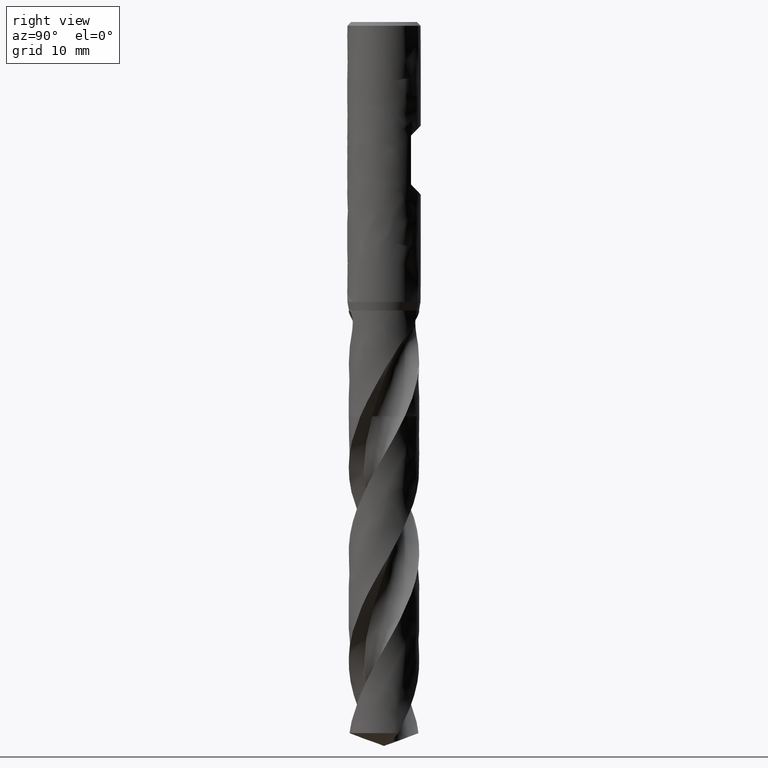
[diagram: clean part render]
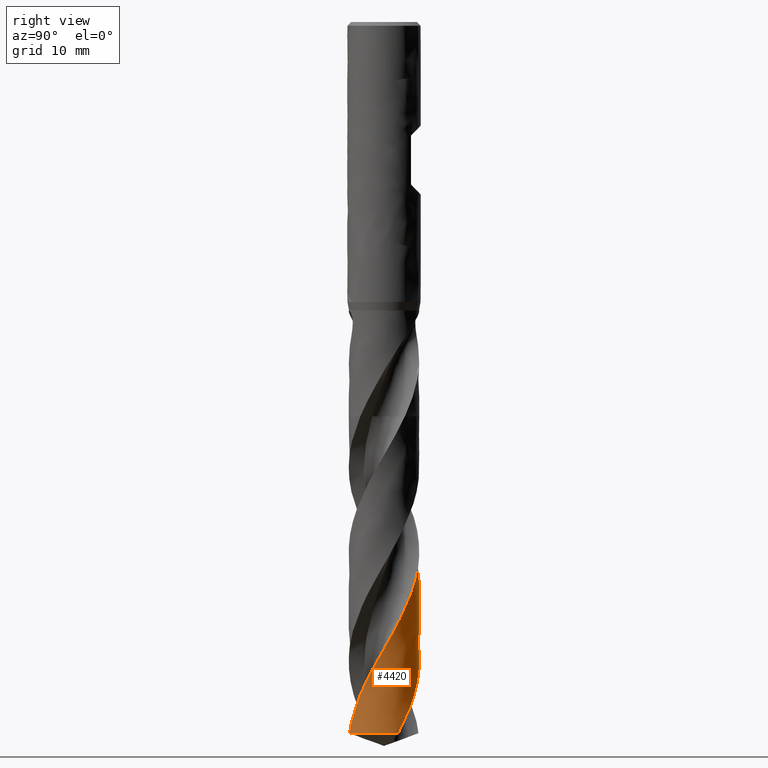
[diagram: same view with one face highlighted and labeled with its STEP entity id]
A machine part, right view. The second image highlights one B-rep face of the part: STEP entity #4420.
In plain terms, the highlighted face is a freeform B-spline surface patch.
Its self-contained STEP definition (entity closure, byte-faithful):
#3330 = VERTEX_POINT('', #3331);
#3331 = CARTESIAN_POINT('', (-5.75, 5.76572558493233E-15, -88.4114445723723));
#3428 = EDGE_CURVE('', #3429, #3330, #3431, .T.);
#3429 = VERTEX_POINT('', #3430);
#3430 = CARTESIAN_POINT('', (5.26135635836145, 2.31961834583397, -115.907171152969));
#3431 = B_SPLINE_CURVE_WITH_KNOTS('', 3, (#3432, #3433, #3434, #3435, #3436, #3437, #3438, #3439, #3440, #3441, #3442, #3443, #3444, #3445, #3446, #3447, #3448, #3449, #3450, #3451, #3452, #3453, #3454, #3455, #3456, #3457, #3458, #3459, #3460, #3461, #3462, #3463, #3464, #3465, #3466, #3467, #3468, #3469, #3470, #3471, #3472, #3473, #3474, #3475, #3476, #3477, #3478, #3479, #3480, #3481, #3482, #3483, #3484, #3485, #3486, #3487, #3488, #3489, #3490, #3491, #3492, #3493, #3494, #3495, #3496, #3497, #3498, #3499, #3500, #3501, #3502, #3503, #3504, #3505, #3506, #3507, #3508, #3509, #3510, #3511, #3512, #3513, #3514, #3515, #3516, #3517, #3518, #3519, #3520, #3521, #3522, #3523, #3524, #3525, #3526, #3527, #3528, #3529, #3530, #3531, #3532, #3533, #3534), .UNSPECIFIED., .F., .U., (4, 3, 3, 3, 3, 3, 3, 3, 3, 3, 3, 3, 3, 3, 3, 3, 3, 3, 3, 3, 3, 3, 3, 3, 3, 3, 3, 3, 3, 3, 3, 3, 3, 3, 4), (0., 0.998414479724208, 1.99659645598563, 2.99454959505257, 3.99227675722206, 4.98977972626538, 5.9870592508588, 6.9841150838855, 7.98094666830408, 8.97755268947953, 9.97393085938466, 10.9700778139642, 11.9659890210908, 12.9616591386548, 13.4046119723773, 13.4629950916535, 14.4626220986254, 15.461981860563, 16.4610837318212, 17.4599356633323, 18.4585442600419, 19.456914833375, 20.455051485205, 21.4529576306736, 22.4506359286901, 23.4480881072606, 24.4453149261283, 25.4423161335358, 26.4390906393306, 27.4356368221289, 28.4319521918892, 29.4280332727841, 30.4238754839511, 31.4194730651082, 31.6483867754396), .UNSPECIFIED.);
#3432 = CARTESIAN_POINT('', (5.26135635836145, 2.31961834583398, -115.907171152969));
#3433 = CARTESIAN_POINT('', (5.19499713504465, 2.47013427969905, -115.61786083562));
#3434 = CARTESIAN_POINT('', (5.12215416717778, 2.61784308502145, -115.328491218301));
#3435 = CARTESIAN_POINT('', (5.04312508867053, 2.76213492429712, -115.039193236178));
#3436 = CARTESIAN_POINT('', (4.96411441387716, 2.90639316194445, -114.749962623654));
#3437 = CARTESIAN_POINT('', (4.87888593919968, 3.04729917764488, -114.4606725505));
#3438 = CARTESIAN_POINT('', (4.78778802076556, 3.18427163857197, -114.171454315795));
#3439 = CARTESIAN_POINT('', (4.69671098689215, 3.32121269801674, -113.882302385522));
#3440 = CARTESIAN_POINT('', (4.59972739226941, 3.45428181068091, -113.593091139229));
#3441 = CARTESIAN_POINT('', (4.4972345760009, 3.58292913248673, -113.303951367065));
#3442 = CARTESIAN_POINT('', (4.39476496824561, 3.7115473233429, -113.014877067824));
#3443 = CARTESIAN_POINT('', (4.28674278734926, 3.83580316939085, -112.725744056488));
#3444 = CARTESIAN_POINT('', (4.17361230808772, 3.95518144991842, -112.436681899132));
#3445 = CARTESIAN_POINT('', (4.06050724967948, 4.07453290568775, -112.147684695154));
#3446 = CARTESIAN_POINT('', (3.94224437339597, 4.18906360886399, -111.858629205161));
#3447 = CARTESIAN_POINT('', (3.81931120822852, 4.29829755771981, -111.569644275695));
#3448 = CARTESIAN_POINT('', (3.69640558055651, 4.40750703775661, -111.28072407995));
#3449 = CARTESIAN_POINT('', (3.56877550656161, 4.51147216914094, -110.991745326284));
#3450 = CARTESIAN_POINT('', (3.43694620910573, 4.60976146407966, -110.702837669436));
#3451 = CARTESIAN_POINT('', (3.30514648119516, 4.70802871255513, -110.413994815088));
#3452 = CARTESIAN_POINT('', (3.16909092017597, 4.80066636154309, -110.125092670704));
#3453 = CARTESIAN_POINT('', (3.02933772961247, 4.887290959207, -109.83626220189));
#3454 = CARTESIAN_POINT('', (2.88961597104849, 4.97389607406481, -109.547496694164));
#3455 = CARTESIAN_POINT('', (2.74613725925014, 5.05452864349765, -109.258671784043));
#3456 = CARTESIAN_POINT('', (2.59949039122713, 5.12885461930029, -108.969918464394));
#3457 = CARTESIAN_POINT('', (2.45287670648569, 5.20316377660679, -108.681230483901));
#3458 = CARTESIAN_POINT('', (2.30303149537126, 5.27120198256391, -108.39248354019));
#3459 = CARTESIAN_POINT('', (2.15057136138357, 5.33268626675121, -108.103807659944));
#3460 = CARTESIAN_POINT('', (1.99814608393344, 5.39415649395715, -107.815197778863));
#3461 = CARTESIAN_POINT('', (1.84303800233285, 5.44910359513386, -107.526529480144));
#3462 = CARTESIAN_POINT('', (1.68588719547835, 5.49729791480527, -107.237931751545));
#3463 = CARTESIAN_POINT('', (1.52877285637883, 5.54548105070565, -106.949400993721));
#3464 = CARTESIAN_POINT('', (1.36954460205389, 5.58693666092134, -106.660811919677));
#3465 = CARTESIAN_POINT('', (1.20885955871399, 5.62149077801488, -106.372293535193));
#3466 = CARTESIAN_POINT('', (1.04821254298593, 5.65603671755484, -106.083843431271));
#3467 = CARTESIAN_POINT('', (0.886036929015118, 5.68370008238491, -105.795334429359));
#3468 = CARTESIAN_POINT('', (0.722999940138129, 5.70436421405238, -105.506896772363));
#3469 = CARTESIAN_POINT('', (0.560002419153486, 5.72502334335977, -105.218528940174));
#3470 = CARTESIAN_POINT('', (0.396072340438998, 5.73869573536417, -104.930101763175));
#3471 = CARTESIAN_POINT('', (0.231883033956588, 5.74532246776153, -104.641746156039));
#3472 = CARTESIAN_POINT('', (0.158838641752425, 5.74827056255915, -104.513462770761));
#3473 = CARTESIAN_POINT('', (0.0857325556488876, 5.74982562374548, -104.385174925186));
#3474 = CARTESIAN_POINT('', (0.0126247666489301, 5.74998614044131, -104.256893878824));
#3475 = CARTESIAN_POINT('', (0.00298884056323384, 5.75000729724331, -104.2399858763));
#3476 = CARTESIAN_POINT('', (-0.00664717903760635, 5.75000423198311, -104.223077879412));
#3477 = CARTESIAN_POINT('', (-0.0162831568372675, 5.74997694419756, -104.206169915143));
#3478 = CARTESIAN_POINT('', (-0.181268922698167, 5.74950972682825, -103.916674288231));
#3479 = CARTESIAN_POINT('', (-0.346282890648146, 5.74193486125477, -103.627119179157));
#3480 = CARTESIAN_POINT('', (-0.510639378247272, 5.72728098013219, -103.337636108872));
#3481 = CARTESIAN_POINT('', (-0.674951926001992, 5.71263101664781, -103.048230430366));
#3482 = CARTESIAN_POINT('', (-0.838680559321904, 5.69089934080742, -102.758764706231));
#3483 = CARTESIAN_POINT('', (-1.00114654911799, 5.66217322122782, -102.469371386085));
#3484 = CARTESIAN_POINT('', (-1.16357061360738, 5.63345451459277, -102.180052745593));
#3485 = CARTESIAN_POINT('', (-1.32480448501069, 5.59773226237387, -101.890674135865));
#3486 = CARTESIAN_POINT('', (-1.48417923990296, 5.55515184165484, -101.601367703433));
#3487 = CARTESIAN_POINT('', (-1.64351412490101, 5.51258207304237, -101.312133645178));
#3488 = CARTESIAN_POINT('', (-1.80106235182897, 5.46313840473687, -101.022840079911));
#3489 = CARTESIAN_POINT('', (-1.95616861996197, 5.40702361103372, -100.733618181112));
#3490 = CARTESIAN_POINT('', (-2.11123710196095, 5.35092248770729, -100.444466740957));
#3491 = CARTESIAN_POINT('', (-2.2639359375323, 5.28812771399918, -100.155256232916));
#3492 = CARTESIAN_POINT('', (-2.41362862999284, 5.21889804810163, -99.8661170334374));
#3493 = CARTESIAN_POINT('', (-2.56328564244801, 5.14968488344278, -99.5770467517399));
#3494 = CARTESIAN_POINT('', (-2.71000700173063, 5.07400797599326, -99.2879173226474));
#3495 = CARTESIAN_POINT('', (-2.85318160475265, 4.99217935678408, -98.9988595058917));
#3496 = CARTESIAN_POINT('', (-2.99632266149513, 4.91036991028904, -98.7098694163316));
#3497 = CARTESIAN_POINT('', (-3.13598329285225, 4.82237473755615, -98.4208195896925));
#3498 = CARTESIAN_POINT('', (-3.27158335534778, 4.72855605328005, -98.1318419139855));
#3499 = CARTESIAN_POINT('', (-3.40715210281549, 4.63475903517913, -97.8429309738225));
#3500 = CARTESIAN_POINT('', (-3.53872224006055, 4.535099640031, -97.553960065485));
#3501 = CARTESIAN_POINT('', (-3.66574750329327, 4.42998817629339, -97.2650613636326));
#3502 = CARTESIAN_POINT('', (-3.79274376341512, 4.32490071218671, -96.9762286247301));
#3503 = CARTESIAN_POINT('', (-3.91525375434381, 4.21431684596794, -96.6873362013118));
#3504 = CARTESIAN_POINT('', (-4.03276780454584, 4.09869294222177, -96.3985156044929));
#3505 = CARTESIAN_POINT('', (-4.15025522069963, 3.98309524413038, -96.1097604676058));
#3506 = CARTESIAN_POINT('', (-4.26280227363191, 3.86240726952519, -95.8209461149368));
#3507 = CARTESIAN_POINT('', (-4.36993942567416, 3.73712849871911, -95.5322031322086));
#3508 = CARTESIAN_POINT('', (-4.47705237164693, 3.61187803281544, -95.2435253867259));
#3509 = CARTESIAN_POINT('', (-4.57880722676728, 3.48198109500139, -94.9547886440624));
#3510 = CARTESIAN_POINT('', (-4.67477889266683, 3.34797585186584, -94.6661232022485));
#3511 = CARTESIAN_POINT('', (-4.77072884604593, 3.21400092592393, -94.3775230677755));
#3512 = CARTESIAN_POINT('', (-4.86094216386707, 3.07585827648713, -94.0888635670653));
#3513 = CARTESIAN_POINT('', (-4.94504247861886, 2.93411909858054, -93.8002758776927));
#3514 = CARTESIAN_POINT('', (-5.0291236703477, 2.79241214982268, -93.5117538083956));
#3515 = CARTESIAN_POINT('', (-5.10713223910508, 2.64704701187474, -93.2231718945391));
#3516 = CARTESIAN_POINT('', (-5.17874305618656, 2.49862369275559, -92.9346621029915));
#3517 = CARTESIAN_POINT('', (-5.25033746996292, 2.35023437175417, -92.6462183980259));
#3518 = CARTESIAN_POINT('', (-5.31556883473745, 2.19872238433035, -92.3577149159906));
#3519 = CARTESIAN_POINT('', (-5.37416468325021, 2.04471366144659, -92.0692833618598));
#3520 = CARTESIAN_POINT('', (-5.43274696020348, 1.89074060898314, -91.7809186122227));
#3521 = CARTESIAN_POINT('', (-5.48472311439123, 1.73420267759049, -91.4924944827216));
#3522 = CARTESIAN_POINT('', (-5.52987505303046, 1.57574804390536, -91.2041418437671));
#3523 = CARTESIAN_POINT('', (-5.57501637395085, 1.41733067167126, -90.9158570124713));
#3524 = CARTESIAN_POINT('', (-5.61335734092213, 1.25692489534354, -90.6275131693844));
#3525 = CARTESIAN_POINT('', (-5.64473608818178, 1.09519609877814, -90.3392405254913));
#3526 = CARTESIAN_POINT('', (-5.67610731051906, 0.933506086318136, -90.0510370121232));
#3527 = CARTESIAN_POINT('', (-5.70053410022469, 0.770419316203756, -89.7627743886342));
#3528 = CARTESIAN_POINT('', (-5.71791240596873, 0.606611669579702, -89.4745832572041));
#3529 = CARTESIAN_POINT('', (-5.73528644270804, 0.442844262529528, -89.1864629203221));
#3530 = CARTESIAN_POINT('', (-5.74562334296849, 0.278282440618946, -88.8982829732979));
#3531 = CARTESIAN_POINT('', (-5.74887758922532, 0.113606619990158, -88.6101749496833));
#3532 = CARTESIAN_POINT('', (-5.74962582485695, 0.075743377033899, -88.5439314413522));
#3533 = CARTESIAN_POINT('', (-5.75, 0.0378717255577753, -88.477687457447));
#3534 = CARTESIAN_POINT('', (-5.75, 5.42918923059283E-15, -88.4114445723723));
#3698 = VERTEX_POINT('', #3699);
#3699 = CARTESIAN_POINT('', (-5.75, 4.67552790741464E-15, -70.6071653585332));
#3718 = EDGE_CURVE('', #3698, #3330, #3719, .T.);
#3719 = LINE('', #3720, #3721);
#3720 = CARTESIAN_POINT('', (-5.75, 4.67552790741464E-15, -70.6071653585332));
#3721 = VECTOR('', #3722, 17.8042792138392);
#3722 = DIRECTION('', (0., 1.09019767751769E-15, -17.8042792138392));
#3742 = VERTEX_POINT('', #3743);
#3743 = CARTESIAN_POINT('', (1.22440021069625, -5.61812638911291, -115.907171152969));
#3873 = EDGE_CURVE('', #3874, #3742, #3876, .T.);
#3874 = VERTEX_POINT('', #3875);
#3875 = CARTESIAN_POINT('', (2.24242788263981, -5.2947159688844, -114.019095538025));
#3876 = B_SPLINE_CURVE_WITH_KNOTS('', 3, (#3877, #3878, #3879, #3880, #3881, #3882, #3883, #3884, #3885, #3886), .UNSPECIFIED., .F., .U., (4, 3, 3, 4), (0., 0.996438729273189, 1.99265158742122, 2.16989860475446), .UNSPECIFIED.);
#3877 = CARTESIAN_POINT('', (2.24242788263984, -5.29471596888438, -114.019095538025));
#3878 = CARTESIAN_POINT('', (2.09163613009722, -5.35857957032417, -114.308066842095));
#3879 = CARTESIAN_POINT('', (1.93809416290929, -5.41600394767006, -114.597110627742));
#3880 = CARTESIAN_POINT('', (1.78242872952962, -5.46675843843009, -114.886097446331));
#3881 = CARTESIAN_POINT('', (1.6267985821395, -5.51750142424396, -115.175018757853));
#3882 = CARTESIAN_POINT('', (1.46897738177942, -5.56159982716894, -115.464011221646));
#3883 = CARTESIAN_POINT('', (1.30961104362753, -5.59887657610052, -115.752947082852));
#3884 = CARTESIAN_POINT('', (1.28125645266867, -5.60550888616354, -115.804354790733));
#3885 = CARTESIAN_POINT('', (1.25285163617019, -5.61192575763328, -115.855763066518));
#3886 = CARTESIAN_POINT('', (1.22440021069625, -5.61812638911291, -115.907171152969));
#4231 = EDGE_CURVE('', #3429, #3742, #4232, .T.);
#4232 = CIRCLE('', #4233, 5.75);
#4233 = AXIS2_PLACEMENT_3D('', #4234, #4235, #4236);
#4234 = CARTESIAN_POINT('', (4.3458228454332E-31, 7.09726730753542E-15, -115.907171152969));
#4235 = DIRECTION('', (3.74939945665464E-33, 6.12323399573677E-17, -1.));
#4236 = DIRECTION('', (-1., 6.12323399573677E-17, 0.));
#4420 = ADVANCED_FACE('', (#4421), #4596, .T.);
#4421 = FACE_OUTER_BOUND('', #4422, .T.);
#4422 = EDGE_LOOP('', (#4423, #4424, #4425, #4426, #4427));
#4423 = ORIENTED_EDGE('', *, *, #3873, .T.);
#4424 = ORIENTED_EDGE('', *, *, #4231, .F.);
#4425 = ORIENTED_EDGE('', *, *, #3428, .T.);
#4426 = ORIENTED_EDGE('', *, *, #3718, .F.);
#4427 = ORIENTED_EDGE('', *, *, #4428, .F.);
#4428 = EDGE_CURVE('', #3874, #3698, #4429, .T.);
#4429 = B_SPLINE_CURVE_WITH_KNOTS('', 3, (#4430, #4431, #4432, #4433, #4434, #4435, #4436, #4437, #4438, #4439, #4440, #4441, #4442, #4443, #4444, #4445, #4446, #4447, #4448, #4449, #4450, #4451, #4452, #4453, #4454, #4455, #4456, #4457, #4458, #4459, #4460, #4461, #4462, #4463, #4464, #4465, #4466, #4467, #4468, #4469, #4470, #4471, #4472, #4473, #4474, #4475, #4476, #4477, #4478, #4479, #4480, #4481, #4482, #4483, #4484, #4485, #4486, #4487, #4488, #4489, #4490, #4491, #4492, #4493, #4494, #4495, #4496, #4497, #4498, #4499, #4500, #4501, #4502, #4503, #4504, #4505, #4506, #4507, #4508, #4509, #4510, #4511, #4512, #4513, #4514, #4515, #4516, #4517, #4518, #4519, #4520, #4521, #4522, #4523, #4524, #4525, #4526, #4527, #4528, #4529, #4530, #4531, #4532, #4533, #4534, #4535, #4536, #4537, #4538, #4539, #4540, #4541, #4542, #4543, #4544, #4545, #4546, #4547, #4548, #4549, #4550, #4551, #4552, #4553, #4554, #4555, #4556, #4557, #4558, #4559, #4560, #4561, #4562, #4563, #4564, #4565, #4566, #4567, #4568, #4569, #4570, #4571, #4572, #4573, #4574, #4575, #4576, #4577, #4578, #4579, #4580, #4581, #4582, #4583, #4584, #4585, #4586, #4587, #4588, #4589, #4590, #4591, #4592, #4593, #4594, #4595), .UNSPECIFIED., .F., .U., (4, 3, 3, 3, 3, 3, 3, 3, 3, 3, 3, 3, 3, 3, 3, 3, 3, 3, 3, 3, 3, 3, 3, 3, 3, 3, 3, 3, 3, 3, 3, 3, 3, 3, 3, 3, 3, 3, 3, 3, 3, 3, 3, 3, 3, 3, 3, 3, 3, 3, 3, 3, 3, 3, 3, 4), (0., 0.998449020066934, 1.9966674389648, 2.99465892143164, 3.99242606330218, 4.98997035976017, 5.98729243394155, 6.98439258865649, 7.98127031639281, 8.97792416007416, 9.97435162603551, 10.9705491263698, 11.9665124713816, 12.9622367336771, 13.4052008239573, 13.6021699035233, 13.6605540180144, 14.660173913374, 15.6595282720765, 16.6586262097478, 17.657475430651, 18.6560823028074, 19.6544519078296, 20.6525881980553, 21.6504944982125, 22.6481732845207, 23.6456260986544, 24.6428535065747, 25.6398550639228, 26.6366296237541, 27.6331754156317, 28.6294897729706, 29.6255690256864, 30.6214083790186, 31.6170019126747, 31.8139700102176, 31.8723516250467, 32.8719990992202, 33.8713765546504, 34.8704932316292, 35.8693569549869, 36.8679742127564, 37.866350216957, 38.8644891421518, 39.8623943350345, 40.8600682447805, 41.8575123965395, 42.8547273498705, 43.8517127067932, 44.8484673342977, 45.8449893174832, 46.8412758535903, 47.837323141428, 48.833126258989, 49.8286792078182, 49.9891043877654), .UNSPECIFIED.);
#4430 = CARTESIAN_POINT('', (2.24242788263981, -5.2947159688844, -114.019095538025));
#4431 = CARTESIAN_POINT('', (2.39352385385941, -5.23072352418887, -113.729541241409));
#4432 = CARTESIAN_POINT('', (2.5419280935575, -5.1602363625189, -113.439932525878));
#4433 = CARTESIAN_POINT('', (2.68703192981817, -5.08353807973714, -113.150400202455));
#4434 = CARTESIAN_POINT('', (2.83210225298644, -5.0068575111434, -112.860934749239));
#4435 = CARTESIAN_POINT('', (2.97393606646055, -4.92393564159405, -112.571415418933));
#4436 = CARTESIAN_POINT('', (3.11194921676739, -4.83510827926953, -112.28197176826));
#4437 = CARTESIAN_POINT('', (3.24993099096337, -4.7463011110871, -111.99259392013));
#4438 = CARTESIAN_POINT('', (3.38415553013331, -4.65155131697656, -111.703163050043));
#4439 = CARTESIAN_POINT('', (3.5140670120081, -4.55124521808224, -111.413807014126));
#4440 = CARTESIAN_POINT('', (3.64394929080869, -4.45096166720604, -111.12451602316));
#4441 = CARTESIAN_POINT('', (3.7695803494379, -4.34507801435241, -110.835172412348));
#4442 = CARTESIAN_POINT('', (3.89043858261117, -4.23402735406024, -110.545903484358));
#4443 = CARTESIAN_POINT('', (4.01126982281012, -4.12300149627877, -110.25669916288));
#4444 = CARTESIAN_POINT('', (4.1273854868268, -4.00676040093978, -109.967441499204));
#4445 = CARTESIAN_POINT('', (4.23830497856665, -3.88577803131588, -109.678259546347));
#4446 = CARTESIAN_POINT('', (4.34919976084542, -3.76482261285364, -109.389142014359));
#4447 = CARTESIAN_POINT('', (4.45494886024045, -3.63907560427781, -109.099970089035));
#4448 = CARTESIAN_POINT('', (4.55511596392434, -3.50904809816018, -108.810874581829));
#4449 = CARTESIAN_POINT('', (4.65526077889049, -3.37904952515807, -108.52184340281));
#4450 = CARTESIAN_POINT('', (4.74986886759822, -3.24471677101114, -108.232757891994));
#4451 = CARTESIAN_POINT('', (4.83854881336212, -3.10659707408476, -107.943748459738));
#4452 = CARTESIAN_POINT('', (4.92720897694837, -2.96850818805209, -107.654803497932));
#4453 = CARTESIAN_POINT('', (5.00998254348831, -2.82657329540949, -107.365804950556));
#4454 = CARTESIAN_POINT('', (5.08652489954816, -2.68137361184087, -107.0768816465));
#4455 = CARTESIAN_POINT('', (5.16305006532222, -2.53620653798258, -106.788023230362));
#4456 = CARTESIAN_POINT('', (5.23338169489458, -2.38770982348797, -106.499111932094));
#4457 = CARTESIAN_POINT('', (5.29722511891718, -2.23649414028137, -106.210275301342));
#4458 = CARTESIAN_POINT('', (5.36105404168756, -2.08531280386609, -105.921504276295));
#4459 = CARTESIAN_POINT('', (5.41842718708791, -1.9313439719934, -105.632680208129));
#4460 = CARTESIAN_POINT('', (5.46910351133711, -1.77522020670124, -105.343931333082));
#4461 = CARTESIAN_POINT('', (5.51976813999071, -1.61913247323358, -105.055249098426));
#4462 = CARTESIAN_POINT('', (5.56376167288439, -1.46082137232655, -104.766512762367));
#4463 = CARTESIAN_POINT('', (5.60089901322512, -1.30093437330814, -104.477852610565));
#4464 = CARTESIAN_POINT('', (5.63802762446754, -1.14108495558438, -104.18926030807));
#4465 = CARTESIAN_POINT('', (5.66831924610309, -0.979591671915946, -103.900613442037));
#4466 = CARTESIAN_POINT('', (5.69164509244212, -0.817114521766138, -103.612042882641));
#4467 = CARTESIAN_POINT('', (5.71496533937156, -0.654676374536072, -103.323541595104));
#4468 = CARTESIAN_POINT('', (5.73133321534324, -0.491184289678164, -103.034986234634));
#4469 = CARTESIAN_POINT('', (5.74067669005436, -0.327308937045229, -102.74650651822));
#4470 = CARTESIAN_POINT('', (5.74483328634531, -0.254406328113057, -102.618171636782));
#4471 = CARTESIAN_POINT('', (5.74760132438082, -0.181417270209574, -102.489833350909));
#4472 = CARTESIAN_POINT('', (5.74897809460564, -0.108401419476591, -102.361502919909));
#4473 = CARTESIAN_POINT('', (5.74959029132746, -0.0759340813149239, -102.304439317172));
#4474 = CARTESIAN_POINT('', (5.7499274585486, -0.043460528931271, -102.24737563637));
#4475 = CARTESIAN_POINT('', (5.74998950493646, -0.0109860420784151, -102.19031285127));
#4476 = CARTESIAN_POINT('', (5.75000789626682, -0.00136019540932234, -102.1733987235));
#4477 = CARTESIAN_POINT('', (5.75000211623383, 0.00826576572341948, -102.156484617317));
#4478 = CARTESIAN_POINT('', (5.74997216401466, 0.0178917035676113, -102.139570557958));
#4479 = CARTESIAN_POINT('', (5.74945933900307, 0.182701584892918, -101.849977568583));
#4480 = CARTESIAN_POINT('', (5.74185402134074, 0.34754544391176, -101.560329812734));
#4481 = CARTESIAN_POINT('', (5.72718265146553, 0.511741025082849, -101.270759058865));
#4482 = CARTESIAN_POINT('', (5.7125151788582, 0.675892989729339, -100.981265225884));
#4483 = CARTESIAN_POINT('', (5.69077904704512, 0.839468592810113, -100.691716036494));
#4484 = CARTESIAN_POINT('', (5.66205908321175, 1.00179186372201, -100.402244101789));
#4485 = CARTESIAN_POINT('', (5.63334648853895, 1.16407348464244, -100.11284644173));
#4486 = CARTESIAN_POINT('', (5.59764102635635, 1.32517442016705, -99.8233938004982));
#4487 = CARTESIAN_POINT('', (5.55508567349468, 1.48442687934918, -99.5340178522647));
#4488 = CARTESIAN_POINT('', (5.51254091441908, 1.64363969401253, -99.2447139416642));
#4489 = CARTESIAN_POINT('', (5.46313036553033, 1.80107688449834, -98.9553558037302));
#4490 = CARTESIAN_POINT('', (5.4070546420611, 1.95608284532267, -98.6660735973765));
#4491 = CARTESIAN_POINT('', (5.35099252413015, 2.11105119736725, -98.3768615789738));
#4492 = CARTESIAN_POINT('', (5.2882423492309, 2.26366156396135, -98.0875957766739));
#4493 = CARTESIAN_POINT('', (5.21906073801308, 2.41327682061765, -97.7984056619814));
#4494 = CARTESIAN_POINT('', (5.14989556421733, 2.56285652896743, -97.5092842583219));
#4495 = CARTESIAN_POINT('', (5.0742700683837, 2.7095117691724, -97.2201085515959));
#4496 = CARTESIAN_POINT('', (4.99249352944486, 2.85263183016162, -96.9310093605008));
#4497 = CARTESIAN_POINT('', (4.91073610134078, 2.99571844459184, -96.6419777306761));
#4498 = CARTESIAN_POINT('', (4.82279426964903, 3.1353350986126, -96.3528908392269));
#4499 = CARTESIAN_POINT('', (4.72902715987475, 3.27090234051202, -96.0638811657439));
#4500 = CARTESIAN_POINT('', (4.63528165587135, 3.40643834507485, -95.7749380857264));
#4501 = CARTESIAN_POINT('', (4.53567263016655, 3.53798594724492, -95.4859396946017));
#4502 = CARTESIAN_POINT('', (4.43060790457396, 3.66499844419159, -95.1970183201774));
#4503 = CARTESIAN_POINT('', (4.32556713281361, 3.79198198340742, -94.9081628172822));
#4504 = CARTESIAN_POINT('', (4.21502629335205, 3.91448901067364, -94.6192526138328));
#4505 = CARTESIAN_POINT('', (4.09944027279105, 4.03200811628882, -94.3304187235379));
#4506 = CARTESIAN_POINT('', (3.98388043222381, 4.14950060407048, -94.0416502535196));
#4507 = CARTESIAN_POINT('', (3.86322444157364, 4.26206147438763, -93.75282773781));
#4508 = CARTESIAN_POINT('', (3.73797103850553, 4.36921875342652, -93.4640809745683));
#4509 = CARTESIAN_POINT('', (3.61274594043081, 4.47635181686725, -93.175399462849));
#4510 = CARTESIAN_POINT('', (3.48286708750081, 4.5781337224618, -92.8866638818032));
#4511 = CARTESIAN_POINT('', (3.34887144593096, 4.67413735769803, -92.598004387346));
#4512 = CARTESIAN_POINT('', (3.21490615149364, 4.77011925017452, -92.3094102680594));
#4513 = CARTESIAN_POINT('', (3.07676513359588, 4.86036914810701, -92.020761205681));
#4514 = CARTESIAN_POINT('', (2.93501753802284, 4.94450928318457, -91.7321891240406));
#4515 = CARTESIAN_POINT('', (2.79330221557112, 5.02863026121912, -91.4436827445504));
#4516 = CARTESIAN_POINT('', (2.64791965891574, 5.1066812702532, -91.1551209091971));
#4517 = CARTESIAN_POINT('', (2.49946833815023, 5.17833544940695, -90.8666362708843));
#4518 = CARTESIAN_POINT('', (2.35105108818291, 5.24997318333767, -90.5782178421671));
#4519 = CARTESIAN_POINT('', (2.19950091117696, 5.31524861461155, -90.2897443150884));
#4520 = CARTESIAN_POINT('', (2.04544363105303, 5.37388689424934, -90.0013474676086));
#4521 = CARTESIAN_POINT('', (1.89142212868849, 5.43251155592465, -89.7130175964705));
#4522 = CARTESIAN_POINT('', (1.73482460363343, 5.4845287416113, -89.4246333131166));
#4523 = CARTESIAN_POINT('', (1.57630050410328, 5.529717598645, -89.1363250305338));
#4524 = CARTESIAN_POINT('', (1.41781381219292, 5.57489579226798, -88.8480847813077));
#4525 = CARTESIAN_POINT('', (1.25732754589872, 5.61326991213129, -88.5597904804552));
#4526 = CARTESIAN_POINT('', (1.09550864403733, 5.64467543892832, -88.2715720253684));
#4527 = CARTESIAN_POINT('', (0.933728715234259, 5.67607340190299, -87.9834229858723));
#4528 = CARTESIAN_POINT('', (0.770541958849234, 5.70052071105148, -87.695219359114));
#4529 = CARTESIAN_POINT('', (0.60662470979091, 5.71791102252154, -87.407092375072));
#4530 = CARTESIAN_POINT('', (0.442747923167535, 5.73529704125029, -87.1190365142304));
#4531 = CARTESIAN_POINT('', (0.27806795157707, 5.74563735781382, -86.8309252434855));
#4532 = CARTESIAN_POINT('', (0.113265371454991, 5.74888432268675, -86.5428911819395));
#4533 = CARTESIAN_POINT('', (0.0806608500519739, 5.74952670180251, -86.4859065599905));
#4534 = CARTESIAN_POINT('', (0.048049819053895, 5.7498917188466, -86.4289218605219));
#4535 = CARTESIAN_POINT('', (0.0154376141995372, 5.7499792764903, -86.3719380818326));
#4536 = CARTESIAN_POINT('', (0.00577131185775218, 5.75000522869623, -86.3550480115092));
#4537 = CARTESIAN_POINT('', (-0.00389512667765725, 5.75000680595115, -86.3381579640878));
#4538 = CARTESIAN_POINT('', (-0.0135615622454073, 5.74998400728467, -86.3212679654602));
#4539 = CARTESIAN_POINT('', (-0.179076475250912, 5.74959363388669, -86.0320665701865));
#4540 = CARTESIAN_POINT('', (-0.344630678590018, 5.74204996212388, -85.7428090455294));
#4541 = CARTESIAN_POINT('', (-0.509533224297554, 5.7273794961865, -85.4536296657404));
#4542 = CARTESIAN_POINT('', (-0.674391227524567, 5.71271299294686, -85.1645283973403));
#4543 = CARTESIAN_POINT('', (-0.838671239937276, 5.69091701054137, -84.8753709338782));
#4544 = CARTESIAN_POINT('', (-1.00168706544072, 5.66207762424087, -84.5862914614679));
#4545 = CARTESIAN_POINT('', (-1.16466035344813, 5.63324576331575, -84.2972874217149));
#4546 = CARTESIAN_POINT('', (-1.32644379944726, 5.59736107145436, -84.0082277179806));
#4547 = CARTESIAN_POINT('', (-1.48635925008629, 5.55456894634346, -83.7192453889754));
#4548 = CARTESIAN_POINT('', (-1.64623421376997, 5.51178765522548, -83.4303362237239));
#4549 = CARTESIAN_POINT('', (-1.80431650120263, 5.46208245971497, -83.1413719928647));
#4550 = CARTESIAN_POINT('', (-1.95994115466293, 5.40565728383318, -82.8524846179052));
#4551 = CARTESIAN_POINT('', (-2.11552740836871, 5.34924603063557, -82.5636685247384));
#4552 = CARTESIAN_POINT('', (-2.26873057825, 5.28609152591992, -82.2747973901127));
#4553 = CARTESIAN_POINT('', (-2.41890609276229, 5.21645409396053, -81.9860033624516));
#4554 = CARTESIAN_POINT('', (-2.5690453267291, 5.14683348554274, -81.6972791038529));
#4555 = CARTESIAN_POINT('', (-2.71622763702257, 5.07070103744003, -81.4084990542433));
#4556 = CARTESIAN_POINT('', (-2.85983566387134, 4.98837047297508, -81.1197969084677));
#4557 = CARTESIAN_POINT('', (-3.00340958889064, 4.90605945910861, -80.8311633192453));
#4558 = CARTESIAN_POINT('', (-3.14347526376179, 4.81751642012929, -80.5424734496169));
#4559 = CARTESIAN_POINT('', (-3.27944574303788, 4.72310656437803, -80.2538617179097));
#4560 = CARTESIAN_POINT('', (-3.41538438236295, 4.62871881640485, -79.9653175698681));
#4561 = CARTESIAN_POINT('', (-3.54729075020755, 4.52842458534648, -79.6767174277613));
#4562 = CARTESIAN_POINT('', (-3.67461056863349, 4.42263916331494, -79.3881949948039));
#4563 = CARTESIAN_POINT('', (-3.80190087831734, 4.31687825902758, -79.0997394323006));
#4564 = CARTESIAN_POINT('', (-3.92466530983193, 4.20557997500519, -78.8112284827659));
#4565 = CARTESIAN_POINT('', (-4.04238585807593, 4.08920732837402, -78.5227946376794));
#4566 = CARTESIAN_POINT('', (-4.16007929602274, 3.97286148162682, -78.2344272170818));
#4567 = CARTESIAN_POINT('', (-4.27278656039419, 3.85138880650933, -77.9460047650173));
#4568 = CARTESIAN_POINT('', (-4.38003080692775, 3.72529597889401, -77.6576592412744));
#4569 = CARTESIAN_POINT('', (-4.48725041026432, 3.59923212561055, -77.3693799752169));
#4570 = CARTESIAN_POINT('', (-4.58905977888696, 3.46849120718322, -77.0810452445791));
#4571 = CARTESIAN_POINT('', (-4.68502865754174, 3.33361762624521, -76.7927881281402));
#4572 = CARTESIAN_POINT('', (-4.78097544054925, 3.19877509828094, -76.5045973793368));
#4573 = CARTESIAN_POINT('', (-4.8711280171134, 3.05974063965601, -76.216350417948));
#4574 = CARTESIAN_POINT('', (-4.95510591726083, 2.91709193354044, -75.9281816147379));
#4575 = CARTESIAN_POINT('', (-5.03906438264737, 2.77447624019957, -75.6400795015949));
#4576 = CARTESIAN_POINT('', (-5.11688867378239, 2.628183992568, -75.3519211714078));
#4577 = CARTESIAN_POINT('', (-5.18824942917666, 2.47882388657367, -75.0638408200793));
#4578 = CARTESIAN_POINT('', (-5.25959352884254, 2.32949864149614, -74.7758277072218));
#4579 = CARTESIAN_POINT('', (-5.32450960017932, 2.17703882097054, -74.4877588857331));
#4580 = CARTESIAN_POINT('', (-5.38272126767399, 2.0220810454901, -74.1997674758993));
#4581 = CARTESIAN_POINT('', (-5.44091918156635, 1.86715988170126, -73.9118441094575));
#4582 = CARTESIAN_POINT('', (-5.49244304407488, 1.70966942018311, -73.6238655523083));
#4583 = CARTESIAN_POINT('', (-5.53707187754612, 1.55026933882097, -73.3359639885769));
#4584 = CARTESIAN_POINT('', (-5.58168999384837, 1.39090753579766, -73.0481315615329));
#4585 = CARTESIAN_POINT('', (-5.61943745947593, 1.22956183763427, -72.7602438558242));
#4586 = CARTESIAN_POINT('', (-5.65015113059868, 1.06690777548748, -72.4724335135907));
#4587 = CARTESIAN_POINT('', (-5.68085727259538, 0.904293586234128, -72.1846937249664));
#4588 = CARTESIAN_POINT('', (-5.70454727579414, 0.740296768788606, -71.8968979314309));
#4589 = CARTESIAN_POINT('', (-5.72111722732673, 0.575602007629986, -71.6091801877766));
#4590 = CARTESIAN_POINT('', (-5.73768301610497, 0.410948621597422, -71.3215347254615));
#4591 = CARTESIAN_POINT('', (-5.74713980682897, 0.245523450260049, -71.0338329503897));
#4592 = CARTESIAN_POINT('', (-5.74944321614825, 0.0800169000372156, -70.7462093230238));
#4593 = CARTESIAN_POINT('', (-5.74981439163919, 0.0533468789869434, -70.6998611380965));
#4594 = CARTESIAN_POINT('', (-5.75, 0.0266736074589452, -70.6535129658635));
#4595 = CARTESIAN_POINT('', (-5.75, 4.40838049211421E-15, -70.6071653585332));
#4596 = (
   BOUNDED_SURFACE ()
   B_SPLINE_SURFACE (2, 1, ((#4597, #4598), (#4599, #4600), (#4601, #4602), (#4603, #4604), (#4605, #4606), (#4607, #4608), (#4609, #4610)), .UNSPECIFIED., .F., .F., .U.)
   B_SPLINE_SURFACE_WITH_KNOTS ((3, 2, 2, 3), (2, 2), (0., 9.03207887907066, 18.0641577581413, 25.7792483663842), (0.342593738264582, 1.), .UNSPECIFIED.)
   GEOMETRIC_REPRESENTATION_ITEM ()
   RATIONAL_B_SPLINE_SURFACE (((1., 1.), (0.707106781186548, 0.707106781186548), (1., 1.), (0.707106781186548, 0.707106781186548), (1., 1.), (0.749814217530592, 0.749814217530592), (0.927039667068547, 0.927039667068547)))
   REPRESENTATION_ITEM ('')
   SURFACE ()
);
#4597 = CARTESIAN_POINT('', (-5.75, 4.67552790741464E-15, -70.6071653585332));
#4598 = CARTESIAN_POINT('', (-5.75, 7.44935326229028E-15, -115.907171152969));
#4599 = CARTESIAN_POINT('', (-5.75, 5.75, -70.6071653585332));
#4600 = CARTESIAN_POINT('', (-5.75, 5.75000000000001, -115.907171152969));
#4601 = CARTESIAN_POINT('', (2.95822839457879E-31, 5.75, -70.6071653585332));
#4602 = CARTESIAN_POINT('', (4.43734259186819E-31, 5.75000000000001, -115.907171152969));
#4603 = CARTESIAN_POINT('', (5.75, 5.75, -70.6071653585332));
#4604 = CARTESIAN_POINT('', (5.75, 5.75000000000001, -115.907171152969));
#4605 = CARTESIAN_POINT('', (5.75, 4.67552790741464E-15, -70.6071653585332));
#4606 = CARTESIAN_POINT('', (5.75, 7.44935326229028E-15, -115.907171152969));
#4607 = CARTESIAN_POINT('', (5.75, -4.63182865357455, -70.6071653585332));
#4608 = CARTESIAN_POINT('', (5.75, -4.63182865357455, -115.907171152969));
#4609 = CARTESIAN_POINT('', (1.22440021069625, -5.61812638911292, -70.6071653585332));
#4610 = CARTESIAN_POINT('', (1.22440021069625, -5.61812638911291, -115.907171152969));